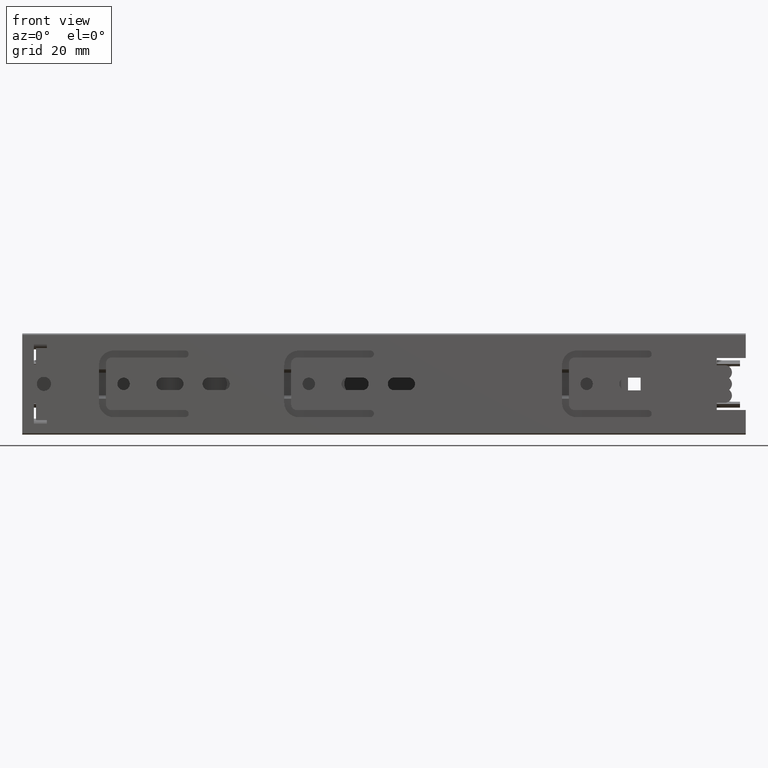
[diagram: clean part render]
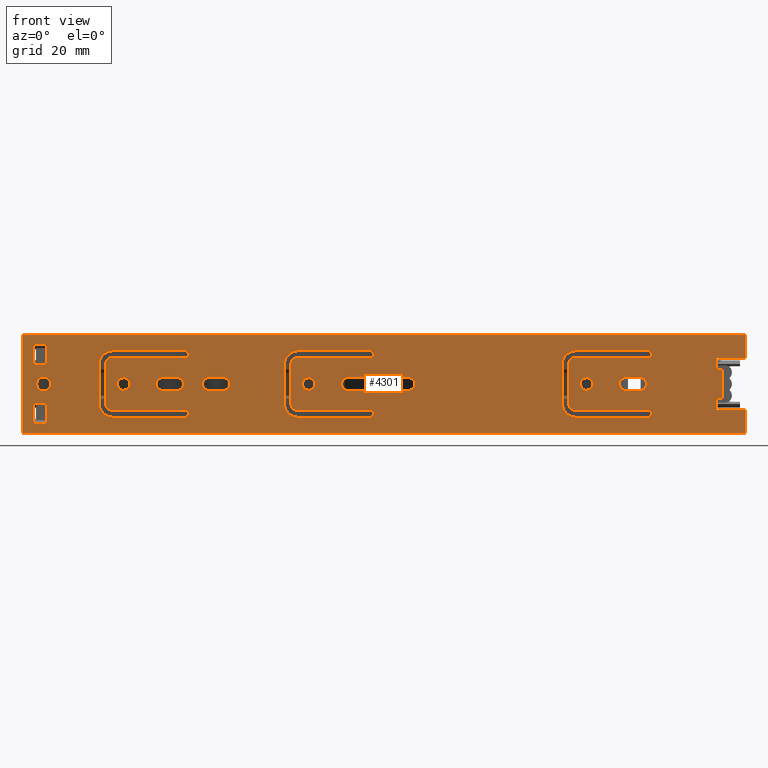
[diagram: same view with one face highlighted and labeled with its STEP entity id]
A machine part, front view. The second image highlights one B-rep face of the part: STEP entity #4301.
In plain terms, the highlighted planar face has unit normal (0, -1, -0).
Its self-contained STEP definition (entity closure, byte-faithful):
#154=FACE_BOUND('',#538,.T.);
#155=FACE_BOUND('',#539,.T.);
#156=FACE_BOUND('',#540,.T.);
#157=FACE_BOUND('',#541,.T.);
#158=FACE_BOUND('',#542,.T.);
#159=FACE_BOUND('',#543,.T.);
#160=FACE_BOUND('',#544,.T.);
#161=FACE_BOUND('',#545,.T.);
#162=FACE_BOUND('',#546,.T.);
#163=FACE_BOUND('',#547,.T.);
#164=FACE_BOUND('',#548,.T.);
#165=FACE_BOUND('',#549,.T.);
#166=FACE_BOUND('',#550,.T.);
#167=FACE_BOUND('',#551,.T.);
#295=FACE_OUTER_BOUND('',#537,.T.);
#537=EDGE_LOOP('',(#3345,#3346,#3347,#3348,#3349,#3350,#3351,#3352,#3353,
#3354,#3355,#3356));
#538=EDGE_LOOP('',(#3357,#3358,#3359,#3360,#3361,#3362,#3363,#3364,#3365,
#3366,#3367,#3368));
#539=EDGE_LOOP('',(#3369,#3370,#3371,#3372,#3373,#3374,#3375,#3376,#3377,
#3378,#3379,#3380));
#540=EDGE_LOOP('',(#3381,#3382,#3383,#3384,#3385,#3386,#3387,#3388,#3389,
#3390,#3391,#3392));
#541=EDGE_LOOP('',(#3393,#3394,#3395,#3396));
#542=EDGE_LOOP('',(#3397,#3398,#3399,#3400));
#543=EDGE_LOOP('',(#3401,#3402,#3403,#3404));
#544=EDGE_LOOP('',(#3405));
#545=EDGE_LOOP('',(#3406));
#546=EDGE_LOOP('',(#3407));
#547=EDGE_LOOP('',(#3408));
#548=EDGE_LOOP('',(#3409,#3410,#3411,#3412));
#549=EDGE_LOOP('',(#3413,#3414,#3415,#3416));
#550=EDGE_LOOP('',(#3417,#3418,#3419,#3420));
#551=EDGE_LOOP('',(#3421,#3422,#3423,#3424));
#704=LINE('',#6137,#1162);
#709=LINE('',#6146,#1167);
#758=LINE('',#6310,#1216);
#760=LINE('',#6314,#1218);
#763=LINE('',#6319,#1221);
#764=LINE('',#6322,#1222);
#767=LINE('',#6327,#1225);
#768=LINE('',#6330,#1226);
#778=LINE('',#6356,#1236);
#781=LINE('',#6364,#1239);
#784=LINE('',#6372,#1242);
#787=LINE('',#6380,#1245);
#790=LINE('',#6388,#1248);
#793=LINE('',#6395,#1251);
#796=LINE('',#6404,#1254);
#799=LINE('',#6412,#1257);
#802=LINE('',#6420,#1260);
#805=LINE('',#6428,#1263);
#808=LINE('',#6436,#1266);
#811=LINE('',#6443,#1269);
#814=LINE('',#6452,#1272);
#817=LINE('',#6460,#1275);
#820=LINE('',#6468,#1278);
#823=LINE('',#6476,#1281);
#826=LINE('',#6484,#1284);
#829=LINE('',#6491,#1287);
#832=LINE('',#6500,#1290);
#835=LINE('',#6507,#1293);
#838=LINE('',#6516,#1296);
#841=LINE('',#6523,#1299);
#843=LINE('',#6528,#1301);
#845=LINE('',#6532,#1303);
#847=LINE('',#6536,#1305);
#849=LINE('',#6539,#1307);
#851=LINE('',#6556,#1309);
#853=LINE('',#6560,#1311);
#855=LINE('',#6564,#1313);
#857=LINE('',#6567,#1315);
#860=LINE('',#6576,#1318);
#863=LINE('',#6583,#1321);
#866=LINE('',#6592,#1324);
#869=LINE('',#6599,#1327);
#872=LINE('',#6608,#1330);
#875=LINE('',#6615,#1333);
#876=LINE('',#6619,#1334);
#899=LINE('',#6672,#1357);
#915=LINE('',#6707,#1373);
#916=LINE('',#6709,#1374);
#1162=VECTOR('',#4884,10.);
#1167=VECTOR('',#4891,1.99999999999999);
#1216=VECTOR('',#5012,1.99999999999999);
#1218=VECTOR('',#5016,3.99999999999996);
#1221=VECTOR('',#5021,4.00000000000004);
#1222=VECTOR('',#5024,10.);
#1225=VECTOR('',#5029,10.);
#1226=VECTOR('',#5032,8.);
#1236=VECTOR('',#5052,25.4);
#1239=VECTOR('',#5061,14.2);
#1242=VECTOR('',#5070,25.4);
#1245=VECTOR('',#5079,24.8);
#1248=VECTOR('',#5088,13.);
#1251=VECTOR('',#5097,24.8);
#1254=VECTOR('',#5106,24.7999999999999);
#1257=VECTOR('',#5115,13.);
#1260=VECTOR('',#5124,24.7999999999999);
#1263=VECTOR('',#5133,25.3999999999999);
#1266=VECTOR('',#5142,14.2);
#1269=VECTOR('',#5151,25.3999999999999);
#1272=VECTOR('',#5160,25.4);
#1275=VECTOR('',#5169,14.2);
#1278=VECTOR('',#5178,25.4);
#1281=VECTOR('',#5187,24.8);
#1284=VECTOR('',#5196,13.);
#1287=VECTOR('',#5205,24.8);
#1290=VECTOR('',#5214,5.);
#1293=VECTOR('',#5223,5.);
#1296=VECTOR('',#5232,5.);
#1299=VECTOR('',#5241,5.);
#1301=VECTOR('',#5245,7.);
#1303=VECTOR('',#5249,4.49999999999999);
#1305=VECTOR('',#5253,7.);
#1307=VECTOR('',#5257,4.49999999999999);
#1309=VECTOR('',#5277,7.);
#1311=VECTOR('',#5281,4.49999999999999);
#1313=VECTOR('',#5285,7.);
#1315=VECTOR('',#5289,4.49999999999999);
#1318=VECTOR('',#5298,5.);
#1321=VECTOR('',#5307,5.);
#1324=VECTOR('',#5316,5.);
#1327=VECTOR('',#5325,5.);
#1330=VECTOR('',#5334,4.99999999999993);
#1333=VECTOR('',#5343,5.);
#1334=VECTOR('',#5346,250.);
#1357=VECTOR('',#5395,34.);
#1373=VECTOR('',#5433,250.);
#1374=VECTOR('',#5436,8.);
#1649=CIRCLE('',#4491,1.2);
#1650=CIRCLE('',#4494,1.99999999999999);
#1651=CIRCLE('',#4497,1.99999999999999);
#1652=CIRCLE('',#4500,1.2);
#1653=CIRCLE('',#4503,5.00000000000002);
#1654=CIRCLE('',#4506,5.00000000000002);
#1655=CIRCLE('',#4509,1.2);
#1656=CIRCLE('',#4512,5.);
#1657=CIRCLE('',#4515,5.);
#1658=CIRCLE('',#4518,1.2);
#1659=CIRCLE('',#4521,2.00000000000001);
#1660=CIRCLE('',#4524,2.);
#1661=CIRCLE('',#4527,1.2);
#1662=CIRCLE('',#4530,1.99999999999998);
#1663=CIRCLE('',#4533,1.99999999999999);
#1664=CIRCLE('',#4536,1.2);
#1665=CIRCLE('',#4539,5.);
#1666=CIRCLE('',#4542,5.);
#1667=CIRCLE('',#4545,2.20000000000006);
#1668=CIRCLE('',#4548,2.20000000000006);
#1669=CIRCLE('',#4551,2.2);
#1670=CIRCLE('',#4554,2.2);
#1671=CIRCLE('',#4561,2.45);
#1672=CIRCLE('',#4563,2.15);
#1673=CIRCLE('',#4565,2.15);
#1674=CIRCLE('',#4567,2.15);
#1675=CIRCLE('',#4573,2.2);
#1676=CIRCLE('',#4576,2.2);
#1677=CIRCLE('',#4579,2.20000000000006);
#1678=CIRCLE('',#4582,2.20000000000006);
#1679=CIRCLE('',#4585,2.2);
#1680=CIRCLE('',#4588,2.2);
#1787=VERTEX_POINT('',#6134);
#1788=VERTEX_POINT('',#6136);
#1791=VERTEX_POINT('',#6144);
#1870=VERTEX_POINT('',#6309);
#1871=VERTEX_POINT('',#6313);
#1872=VERTEX_POINT('',#6317);
#1873=VERTEX_POINT('',#6321);
#1874=VERTEX_POINT('',#6325);
#1875=VERTEX_POINT('',#6329);
#1884=VERTEX_POINT('',#6349);
#1885=VERTEX_POINT('',#6351);
#1886=VERTEX_POINT('',#6355);
#1887=VERTEX_POINT('',#6359);
#1888=VERTEX_POINT('',#6363);
#1889=VERTEX_POINT('',#6367);
#1890=VERTEX_POINT('',#6371);
#1891=VERTEX_POINT('',#6375);
#1892=VERTEX_POINT('',#6379);
#1893=VERTEX_POINT('',#6383);
#1894=VERTEX_POINT('',#6387);
#1895=VERTEX_POINT('',#6391);
#1896=VERTEX_POINT('',#6397);
#1897=VERTEX_POINT('',#6399);
#1898=VERTEX_POINT('',#6403);
#1899=VERTEX_POINT('',#6407);
#1900=VERTEX_POINT('',#6411);
#1901=VERTEX_POINT('',#6415);
#1902=VERTEX_POINT('',#6419);
#1903=VERTEX_POINT('',#6423);
#1904=VERTEX_POINT('',#6427);
#1905=VERTEX_POINT('',#6431);
#1906=VERTEX_POINT('',#6435);
#1907=VERTEX_POINT('',#6439);
#1908=VERTEX_POINT('',#6445);
#1909=VERTEX_POINT('',#6447);
#1910=VERTEX_POINT('',#6451);
#1911=VERTEX_POINT('',#6455);
#1912=VERTEX_POINT('',#6459);
#1913=VERTEX_POINT('',#6463);
#1914=VERTEX_POINT('',#6467);
#1915=VERTEX_POINT('',#6471);
#1916=VERTEX_POINT('',#6475);
#1917=VERTEX_POINT('',#6479);
#1918=VERTEX_POINT('',#6483);
#1919=VERTEX_POINT('',#6487);
#1920=VERTEX_POINT('',#6493);
#1921=VERTEX_POINT('',#6495);
#1922=VERTEX_POINT('',#6499);
#1923=VERTEX_POINT('',#6503);
#1924=VERTEX_POINT('',#6509);
#1925=VERTEX_POINT('',#6511);
#1926=VERTEX_POINT('',#6515);
#1927=VERTEX_POINT('',#6519);
#1928=VERTEX_POINT('',#6525);
#1929=VERTEX_POINT('',#6527);
#1930=VERTEX_POINT('',#6531);
#1931=VERTEX_POINT('',#6535);
#1932=VERTEX_POINT('',#6541);
#1933=VERTEX_POINT('',#6544);
#1934=VERTEX_POINT('',#6547);
#1935=VERTEX_POINT('',#6550);
#1936=VERTEX_POINT('',#6553);
#1937=VERTEX_POINT('',#6555);
#1938=VERTEX_POINT('',#6559);
#1939=VERTEX_POINT('',#6563);
#1940=VERTEX_POINT('',#6569);
#1941=VERTEX_POINT('',#6571);
#1942=VERTEX_POINT('',#6575);
#1943=VERTEX_POINT('',#6579);
#1944=VERTEX_POINT('',#6585);
#1945=VERTEX_POINT('',#6587);
#1946=VERTEX_POINT('',#6591);
#1947=VERTEX_POINT('',#6595);
#1948=VERTEX_POINT('',#6601);
#1949=VERTEX_POINT('',#6603);
#1950=VERTEX_POINT('',#6607);
#1951=VERTEX_POINT('',#6611);
#1952=VERTEX_POINT('',#6617);
#1953=VERTEX_POINT('',#6618);
#1970=VERTEX_POINT('',#6671);
#2216=EDGE_CURVE('',#1787,#1788,#704,.T.);
#2221=EDGE_CURVE('',#1791,#1787,#709,.T.);
#2302=EDGE_CURVE('',#1788,#1870,#758,.T.);
#2304=EDGE_CURVE('',#1871,#1870,#760,.T.);
#2307=EDGE_CURVE('',#1791,#1872,#763,.T.);
#2308=EDGE_CURVE('',#1873,#1871,#764,.T.);
#2311=EDGE_CURVE('',#1872,#1874,#767,.T.);
#2312=EDGE_CURVE('',#1873,#1875,#768,.T.);
#2323=EDGE_CURVE('',#1885,#1884,#1649,.T.);
#2325=EDGE_CURVE('',#1886,#1885,#778,.T.);
#2327=EDGE_CURVE('',#1887,#1886,#1650,.T.);
#2329=EDGE_CURVE('',#1888,#1887,#781,.T.);
#2331=EDGE_CURVE('',#1889,#1888,#1651,.T.);
#2333=EDGE_CURVE('',#1890,#1889,#784,.T.);
#2335=EDGE_CURVE('',#1891,#1890,#1652,.T.);
#2337=EDGE_CURVE('',#1892,#1891,#787,.T.);
#2339=EDGE_CURVE('',#1893,#1892,#1653,.T.);
#2341=EDGE_CURVE('',#1894,#1893,#790,.T.);
#2343=EDGE_CURVE('',#1895,#1894,#1654,.T.);
#2345=EDGE_CURVE('',#1884,#1895,#793,.T.);
#2347=EDGE_CURVE('',#1897,#1896,#1655,.T.);
#2349=EDGE_CURVE('',#1898,#1897,#796,.T.);
#2351=EDGE_CURVE('',#1899,#1898,#1656,.T.);
#2353=EDGE_CURVE('',#1900,#1899,#799,.T.);
#2355=EDGE_CURVE('',#1901,#1900,#1657,.T.);
#2357=EDGE_CURVE('',#1902,#1901,#802,.T.);
#2359=EDGE_CURVE('',#1903,#1902,#1658,.T.);
#2361=EDGE_CURVE('',#1904,#1903,#805,.T.);
#2363=EDGE_CURVE('',#1905,#1904,#1659,.T.);
#2365=EDGE_CURVE('',#1906,#1905,#808,.T.);
#2367=EDGE_CURVE('',#1907,#1906,#1660,.T.);
#2369=EDGE_CURVE('',#1896,#1907,#811,.T.);
#2371=EDGE_CURVE('',#1909,#1908,#1661,.T.);
#2373=EDGE_CURVE('',#1910,#1909,#814,.T.);
#2375=EDGE_CURVE('',#1911,#1910,#1662,.T.);
#2377=EDGE_CURVE('',#1912,#1911,#817,.T.);
#2379=EDGE_CURVE('',#1913,#1912,#1663,.T.);
#2381=EDGE_CURVE('',#1914,#1913,#820,.T.);
#2383=EDGE_CURVE('',#1915,#1914,#1664,.T.);
#2385=EDGE_CURVE('',#1916,#1915,#823,.T.);
#2387=EDGE_CURVE('',#1917,#1916,#1665,.T.);
#2389=EDGE_CURVE('',#1918,#1917,#826,.T.);
#2391=EDGE_CURVE('',#1919,#1918,#1666,.T.);
#2393=EDGE_CURVE('',#1908,#1919,#829,.T.);
#2395=EDGE_CURVE('',#1921,#1920,#1667,.T.);
#2397=EDGE_CURVE('',#1922,#1921,#832,.T.);
#2399=EDGE_CURVE('',#1923,#1922,#1668,.T.);
#2401=EDGE_CURVE('',#1920,#1923,#835,.T.);
#2403=EDGE_CURVE('',#1925,#1924,#1669,.T.);
#2405=EDGE_CURVE('',#1926,#1925,#838,.T.);
#2407=EDGE_CURVE('',#1927,#1926,#1670,.T.);
#2409=EDGE_CURVE('',#1924,#1927,#841,.T.);
#2411=EDGE_CURVE('',#1929,#1928,#843,.T.);
#2413=EDGE_CURVE('',#1930,#1929,#845,.T.);
#2415=EDGE_CURVE('',#1931,#1930,#847,.T.);
#2417=EDGE_CURVE('',#1928,#1931,#849,.T.);
#2418=EDGE_CURVE('',#1932,#1932,#1671,.T.);
#2419=EDGE_CURVE('',#1933,#1933,#1672,.T.);
#2420=EDGE_CURVE('',#1934,#1934,#1673,.T.);
#2421=EDGE_CURVE('',#1935,#1935,#1674,.T.);
#2423=EDGE_CURVE('',#1937,#1936,#851,.T.);
#2425=EDGE_CURVE('',#1938,#1937,#853,.T.);
#2427=EDGE_CURVE('',#1939,#1938,#855,.T.);
#2429=EDGE_CURVE('',#1936,#1939,#857,.T.);
#2431=EDGE_CURVE('',#1941,#1940,#1675,.T.);
#2433=EDGE_CURVE('',#1942,#1941,#860,.T.);
#2435=EDGE_CURVE('',#1943,#1942,#1676,.T.);
#2437=EDGE_CURVE('',#1940,#1943,#863,.T.);
#2439=EDGE_CURVE('',#1945,#1944,#1677,.T.);
#2441=EDGE_CURVE('',#1946,#1945,#866,.T.);
#2443=EDGE_CURVE('',#1947,#1946,#1678,.T.);
#2445=EDGE_CURVE('',#1944,#1947,#869,.T.);
#2447=EDGE_CURVE('',#1949,#1948,#1679,.T.);
#2449=EDGE_CURVE('',#1950,#1949,#872,.T.);
#2451=EDGE_CURVE('',#1951,#1950,#1680,.T.);
#2453=EDGE_CURVE('',#1948,#1951,#875,.T.);
#2454=EDGE_CURVE('',#1952,#1953,#876,.T.);
#2481=EDGE_CURVE('',#1970,#1952,#899,.T.);
#2499=EDGE_CURVE('',#1970,#1875,#915,.T.);
#2500=EDGE_CURVE('',#1953,#1874,#916,.T.);
#3345=ORIENTED_EDGE('',*,*,#2221,.F.);
#3346=ORIENTED_EDGE('',*,*,#2307,.T.);
#3347=ORIENTED_EDGE('',*,*,#2311,.T.);
#3348=ORIENTED_EDGE('',*,*,#2500,.F.);
#3349=ORIENTED_EDGE('',*,*,#2454,.F.);
#3350=ORIENTED_EDGE('',*,*,#2481,.F.);
#3351=ORIENTED_EDGE('',*,*,#2499,.T.);
#3352=ORIENTED_EDGE('',*,*,#2312,.F.);
#3353=ORIENTED_EDGE('',*,*,#2308,.T.);
#3354=ORIENTED_EDGE('',*,*,#2304,.T.);
#3355=ORIENTED_EDGE('',*,*,#2302,.F.);
#3356=ORIENTED_EDGE('',*,*,#2216,.F.);
#3357=ORIENTED_EDGE('',*,*,#2335,.T.);
#3358=ORIENTED_EDGE('',*,*,#2333,.T.);
#3359=ORIENTED_EDGE('',*,*,#2331,.T.);
#3360=ORIENTED_EDGE('',*,*,#2329,.T.);
#3361=ORIENTED_EDGE('',*,*,#2327,.T.);
#3362=ORIENTED_EDGE('',*,*,#2325,.T.);
#3363=ORIENTED_EDGE('',*,*,#2323,.T.);
#3364=ORIENTED_EDGE('',*,*,#2345,.T.);
#3365=ORIENTED_EDGE('',*,*,#2343,.T.);
#3366=ORIENTED_EDGE('',*,*,#2341,.T.);
#3367=ORIENTED_EDGE('',*,*,#2339,.T.);
#3368=ORIENTED_EDGE('',*,*,#2337,.T.);
#3369=ORIENTED_EDGE('',*,*,#2359,.T.);
#3370=ORIENTED_EDGE('',*,*,#2357,.T.);
#3371=ORIENTED_EDGE('',*,*,#2355,.T.);
#3372=ORIENTED_EDGE('',*,*,#2353,.T.);
#3373=ORIENTED_EDGE('',*,*,#2351,.T.);
#3374=ORIENTED_EDGE('',*,*,#2349,.T.);
#3375=ORIENTED_EDGE('',*,*,#2347,.T.);
#3376=ORIENTED_EDGE('',*,*,#2369,.T.);
#3377=ORIENTED_EDGE('',*,*,#2367,.T.);
#3378=ORIENTED_EDGE('',*,*,#2365,.T.);
#3379=ORIENTED_EDGE('',*,*,#2363,.T.);
#3380=ORIENTED_EDGE('',*,*,#2361,.T.);
#3381=ORIENTED_EDGE('',*,*,#2383,.T.);
#3382=ORIENTED_EDGE('',*,*,#2381,.T.);
#3383=ORIENTED_EDGE('',*,*,#2379,.T.);
#3384=ORIENTED_EDGE('',*,*,#2377,.T.);
#3385=ORIENTED_EDGE('',*,*,#2375,.T.);
#3386=ORIENTED_EDGE('',*,*,#2373,.T.);
#3387=ORIENTED_EDGE('',*,*,#2371,.T.);
#3388=ORIENTED_EDGE('',*,*,#2393,.T.);
#3389=ORIENTED_EDGE('',*,*,#2391,.T.);
#3390=ORIENTED_EDGE('',*,*,#2389,.T.);
#3391=ORIENTED_EDGE('',*,*,#2387,.T.);
#3392=ORIENTED_EDGE('',*,*,#2385,.T.);
#3393=ORIENTED_EDGE('',*,*,#2399,.T.);
#3394=ORIENTED_EDGE('',*,*,#2397,.T.);
#3395=ORIENTED_EDGE('',*,*,#2395,.T.);
#3396=ORIENTED_EDGE('',*,*,#2401,.T.);
#3397=ORIENTED_EDGE('',*,*,#2407,.T.);
#3398=ORIENTED_EDGE('',*,*,#2405,.T.);
#3399=ORIENTED_EDGE('',*,*,#2403,.T.);
#3400=ORIENTED_EDGE('',*,*,#2409,.T.);
#3401=ORIENTED_EDGE('',*,*,#2415,.T.);
#3402=ORIENTED_EDGE('',*,*,#2413,.T.);
#3403=ORIENTED_EDGE('',*,*,#2411,.T.);
#3404=ORIENTED_EDGE('',*,*,#2417,.T.);
#3405=ORIENTED_EDGE('',*,*,#2418,.T.);
#3406=ORIENTED_EDGE('',*,*,#2419,.T.);
#3407=ORIENTED_EDGE('',*,*,#2420,.T.);
#3408=ORIENTED_EDGE('',*,*,#2421,.T.);
#3409=ORIENTED_EDGE('',*,*,#2427,.T.);
#3410=ORIENTED_EDGE('',*,*,#2425,.T.);
#3411=ORIENTED_EDGE('',*,*,#2423,.T.);
#3412=ORIENTED_EDGE('',*,*,#2429,.T.);
#3413=ORIENTED_EDGE('',*,*,#2435,.T.);
#3414=ORIENTED_EDGE('',*,*,#2433,.T.);
#3415=ORIENTED_EDGE('',*,*,#2431,.T.);
#3416=ORIENTED_EDGE('',*,*,#2437,.T.);
#3417=ORIENTED_EDGE('',*,*,#2443,.T.);
#3418=ORIENTED_EDGE('',*,*,#2441,.T.);
#3419=ORIENTED_EDGE('',*,*,#2439,.T.);
#3420=ORIENTED_EDGE('',*,*,#2445,.T.);
#3421=ORIENTED_EDGE('',*,*,#2451,.T.);
#3422=ORIENTED_EDGE('',*,*,#2449,.T.);
#3423=ORIENTED_EDGE('',*,*,#2447,.T.);
#3424=ORIENTED_EDGE('',*,*,#2453,.T.);
#4118=PLANE('',#4615);
#4301=ADVANCED_FACE('',(#295,#154,#155,#156,#157,#158,#159,#160,#161,#162,
#163,#164,#165,#166,#167),#4118,.T.);
#4491=AXIS2_PLACEMENT_3D('',#6352,#5047,#5048);
#4494=AXIS2_PLACEMENT_3D('',#6360,#5056,#5057);
#4497=AXIS2_PLACEMENT_3D('',#6368,#5065,#5066);
#4500=AXIS2_PLACEMENT_3D('',#6376,#5074,#5075);
#4503=AXIS2_PLACEMENT_3D('',#6384,#5083,#5084);
#4506=AXIS2_PLACEMENT_3D('',#6392,#5092,#5093);
#4509=AXIS2_PLACEMENT_3D('',#6400,#5101,#5102);
#4512=AXIS2_PLACEMENT_3D('',#6408,#5110,#5111);
#4515=AXIS2_PLACEMENT_3D('',#6416,#5119,#5120);
#4518=AXIS2_PLACEMENT_3D('',#6424,#5128,#5129);
#4521=AXIS2_PLACEMENT_3D('',#6432,#5137,#5138);
#4524=AXIS2_PLACEMENT_3D('',#6440,#5146,#5147);
#4527=AXIS2_PLACEMENT_3D('',#6448,#5155,#5156);
#4530=AXIS2_PLACEMENT_3D('',#6456,#5164,#5165);
#4533=AXIS2_PLACEMENT_3D('',#6464,#5173,#5174);
#4536=AXIS2_PLACEMENT_3D('',#6472,#5182,#5183);
#4539=AXIS2_PLACEMENT_3D('',#6480,#5191,#5192);
#4542=AXIS2_PLACEMENT_3D('',#6488,#5200,#5201);
#4545=AXIS2_PLACEMENT_3D('',#6496,#5209,#5210);
#4548=AXIS2_PLACEMENT_3D('',#6504,#5218,#5219);
#4551=AXIS2_PLACEMENT_3D('',#6512,#5227,#5228);
#4554=AXIS2_PLACEMENT_3D('',#6520,#5236,#5237);
#4561=AXIS2_PLACEMENT_3D('',#6542,#5260,#5261);
#4563=AXIS2_PLACEMENT_3D('',#6545,#5264,#5265);
#4565=AXIS2_PLACEMENT_3D('',#6548,#5268,#5269);
#4567=AXIS2_PLACEMENT_3D('',#6551,#5272,#5273);
#4573=AXIS2_PLACEMENT_3D('',#6572,#5293,#5294);
#4576=AXIS2_PLACEMENT_3D('',#6580,#5302,#5303);
#4579=AXIS2_PLACEMENT_3D('',#6588,#5311,#5312);
#4582=AXIS2_PLACEMENT_3D('',#6596,#5320,#5321);
#4585=AXIS2_PLACEMENT_3D('',#6604,#5329,#5330);
#4588=AXIS2_PLACEMENT_3D('',#6612,#5338,#5339);
#4615=AXIS2_PLACEMENT_3D('',#6708,#5434,#5435);
#4884=DIRECTION('',(0.,3.06161699786838E-16,-1.));
#4891=DIRECTION('',(1.,-6.79815536723448E-31,2.22044604925032E-15));
#5012=DIRECTION('',(-1.,0.,0.));
#5016=DIRECTION('',(0.,-3.06161699786838E-16,1.));
#5021=DIRECTION('',(0.,-3.06161699786838E-16,1.));
#5024=DIRECTION('',(-1.,4.71385096176607E-32,-1.53966056663784E-16));
#5029=DIRECTION('',(1.,0.,0.));
#5032=DIRECTION('',(0.,-3.06161699786838E-16,-1.));
#5047=DIRECTION('center_axis',(0.,1.,3.06161699786838E-16));
#5048=DIRECTION('ref_axis',(0.,-3.70074341541719E-16,1.));
#5052=DIRECTION('',(1.,9.36753692335457E-32,-3.05966975290398E-16));
#5056=DIRECTION('center_axis',(0.,-1.,-3.06161699786838E-16));
#5057=DIRECTION('ref_axis',(-1.,-2.05432527401306E-31,5.5511151231258E-16));
#5061=DIRECTION('',(0.,3.06161699786838E-16,-1.));
#5065=DIRECTION('center_axis',(0.,-1.,-3.06161699786838E-16));
#5066=DIRECTION('ref_axis',(0.,-3.70074341541719E-16,1.));
#5070=DIRECTION('',(-1.,-1.07057564838338E-31,3.49676543189026E-16));
#5074=DIRECTION('center_axis',(0.,1.,3.06161699786838E-16));
#5075=DIRECTION('ref_axis',(0.,-3.70074341541719E-16,1.));
#5079=DIRECTION('',(1.,-5.48238336067295E-32,1.79068229778251E-16));
#5083=DIRECTION('center_axis',(0.,1.,3.06161699786838E-16));
#5084=DIRECTION('ref_axis',(0.,3.70074341541719E-16,-1.));
#5088=DIRECTION('',(0.,-3.06161699786838E-16,1.));
#5092=DIRECTION('center_axis',(0.,1.,3.06161699786838E-16));
#5093=DIRECTION('ref_axis',(1.,0.,0.));
#5097=DIRECTION('',(-1.,-2.74119168033647E-32,8.95341148891255E-17));
#5101=DIRECTION('center_axis',(0.,1.,3.06161699786838E-16));
#5102=DIRECTION('ref_axis',(0.,0.,1.));
#5106=DIRECTION('',(1.,5.48238336067296E-32,-1.79068229778252E-16));
#5110=DIRECTION('center_axis',(0.,1.,3.06161699786838E-16));
#5111=DIRECTION('ref_axis',(0.,0.,-1.));
#5115=DIRECTION('',(0.,-3.06161699786838E-16,1.));
#5119=DIRECTION('center_axis',(0.,1.,3.06161699786838E-16));
#5120=DIRECTION('ref_axis',(1.,0.,-4.44089209850063E-16));
#5124=DIRECTION('',(-1.,5.48238336067296E-32,-1.79068229778252E-16));
#5128=DIRECTION('center_axis',(0.,1.,3.06161699786838E-16));
#5129=DIRECTION('ref_axis',(0.,0.,1.));
#5133=DIRECTION('',(1.,0.,0.));
#5137=DIRECTION('center_axis',(0.,-1.,-3.06161699786838E-16));
#5138=DIRECTION('ref_axis',(-1.,0.,0.));
#5142=DIRECTION('',(-6.25477760352201E-16,3.06161699786838E-16,-1.));
#5146=DIRECTION('center_axis',(0.,-1.,-3.06161699786838E-16));
#5147=DIRECTION('ref_axis',(0.,0.,1.));
#5151=DIRECTION('',(-1.,0.,0.));
#5155=DIRECTION('center_axis',(0.,1.,3.06161699786838E-16));
#5156=DIRECTION('ref_axis',(0.,-3.70074341541719E-16,1.));
#5160=DIRECTION('',(1.,9.36753692335455E-32,-3.05966975290397E-16));
#5164=DIRECTION('center_axis',(0.,-1.,-3.06161699786838E-16));
#5165=DIRECTION('ref_axis',(-1.,-2.05432527401306E-31,5.5511151231258E-16));
#5169=DIRECTION('',(2.5019110414088E-15,3.06161699786838E-16,-1.));
#5173=DIRECTION('center_axis',(0.,-1.,-3.06161699786838E-16));
#5174=DIRECTION('ref_axis',(0.,-3.70074341541719E-16,1.));
#5178=DIRECTION('',(-1.,-1.60586347257507E-31,5.24514814783538E-16));
#5182=DIRECTION('center_axis',(0.,1.,3.06161699786838E-16));
#5183=DIRECTION('ref_axis',(0.,-3.70074341541719E-16,1.));
#5187=DIRECTION('',(1.,-1.64471500820188E-31,5.37204689334753E-16));
#5191=DIRECTION('center_axis',(0.,1.,3.06161699786838E-16));
#5192=DIRECTION('ref_axis',(0.,3.70074341541719E-16,-1.));
#5196=DIRECTION('',(0.,-3.06161699786838E-16,1.));
#5200=DIRECTION('center_axis',(0.,1.,3.06161699786838E-16));
#5201=DIRECTION('ref_axis',(1.,0.,0.));
#5205=DIRECTION('',(-1.,-1.64471500820188E-31,5.37204689334753E-16));
#5209=DIRECTION('center_axis',(0.,1.,3.06161699786838E-16));
#5210=DIRECTION('ref_axis',(0.,-2.77555756156289E-16,1.));
#5214=DIRECTION('',(1.,2.71926214689378E-31,-8.88178419700125E-16));
#5218=DIRECTION('center_axis',(0.,1.,3.06161699786838E-16));
#5219=DIRECTION('ref_axis',(0.,2.77555756156289E-16,-1.));
#5223=DIRECTION('',(-1.,-1.35963107344689E-31,4.44089209850063E-16));
#5227=DIRECTION('center_axis',(0.,1.,3.06161699786838E-16));
#5228=DIRECTION('ref_axis',(0.,-2.77555756156289E-16,1.));
#5232=DIRECTION('',(1.,-2.71926214689378E-31,8.88178419700125E-16));
#5236=DIRECTION('center_axis',(0.,1.,3.06161699786838E-16));
#5237=DIRECTION('ref_axis',(0.,2.77555756156289E-16,-1.));
#5241=DIRECTION('',(-1.,1.35963107344689E-31,-4.44089209850063E-16));
#5245=DIRECTION('',(0.,3.06161699786838E-16,-1.));
#5249=DIRECTION('',(1.,0.,0.));
#5253=DIRECTION('',(-1.58603289232165E-16,-3.06161699786838E-16,1.));
#5257=DIRECTION('',(-1.,0.,0.));
#5260=DIRECTION('center_axis',(0.,1.,3.06161699786838E-16));
#5261=DIRECTION('ref_axis',(-1.,0.,0.));
#5264=DIRECTION('center_axis',(0.,1.,3.06161699786838E-16));
#5265=DIRECTION('ref_axis',(-1.,0.,0.));
#5268=DIRECTION('center_axis',(0.,1.,3.06161699786838E-16));
#5269=DIRECTION('ref_axis',(-1.,0.,0.));
#5272=DIRECTION('center_axis',(0.,1.,3.06161699786838E-16));
#5273=DIRECTION('ref_axis',(-1.,0.,0.));
#5277=DIRECTION('',(3.1720657846433E-16,3.06161699786838E-16,-1.));
#5281=DIRECTION('',(1.,0.,0.));
#5285=DIRECTION('',(-4.75809867696496E-16,-3.06161699786838E-16,1.));
#5289=DIRECTION('',(-1.,0.,0.));
#5293=DIRECTION('center_axis',(0.,1.,3.06161699786838E-16));
#5294=DIRECTION('ref_axis',(0.,-2.77555756156289E-16,1.));
#5298=DIRECTION('',(1.,-1.35963107344689E-31,4.44089209850063E-16));
#5302=DIRECTION('center_axis',(0.,1.,3.06161699786838E-16));
#5303=DIRECTION('ref_axis',(0.,2.77555756156289E-16,-1.));
#5307=DIRECTION('',(-1.,-1.35963107344689E-31,4.44089209850063E-16));
#5311=DIRECTION('center_axis',(0.,1.,3.06161699786838E-16));
#5312=DIRECTION('ref_axis',(0.,-2.77555756156289E-16,1.));
#5316=DIRECTION('',(1.,1.35963107344689E-31,-4.44089209850063E-16));
#5320=DIRECTION('center_axis',(0.,1.,3.06161699786838E-16));
#5321=DIRECTION('ref_axis',(0.,2.77555756156289E-16,-1.));
#5325=DIRECTION('',(-1.,0.,0.));
#5329=DIRECTION('center_axis',(0.,1.,3.06161699786838E-16));
#5330=DIRECTION('ref_axis',(0.,-2.77555756156289E-16,1.));
#5334=DIRECTION('',(1.,1.35963107344691E-31,-4.44089209850069E-16));
#5338=DIRECTION('center_axis',(0.,1.,3.06161699786838E-16));
#5339=DIRECTION('ref_axis',(-3.22973970800045E-14,2.77555756156289E-16,
-1.));
#5343=DIRECTION('',(-1.,-1.35963107344689E-31,4.44089209850063E-16));
#5346=DIRECTION('',(1.,0.,0.));
#5395=DIRECTION('',(0.,-3.06161699786838E-16,1.));
#5433=DIRECTION('',(1.,0.,0.));
#5434=DIRECTION('center_axis',(0.,-1.,-3.06161699786838E-16));
#5435=DIRECTION('ref_axis',(0.,3.06161699786838E-16,-1.));
#5436=DIRECTION('',(0.,-3.06161699786838E-16,-1.));
#6134=CARTESIAN_POINT('',(117.,-1.53080849893418E-15,4.99999999999996));
#6136=CARTESIAN_POINT('',(117.,1.5308084989342E-15,-5.00000000000004));
#6137=CARTESIAN_POINT('',(117.,-1.53080849893418E-15,4.99999999999996));
#6144=CARTESIAN_POINT('',(115.,-1.53080849893418E-15,4.99999999999996));
#6146=CARTESIAN_POINT('',(115.,-1.53080849893418E-15,4.99999999999996));
#6309=CARTESIAN_POINT('',(115.,1.5308084989342E-15,-5.00000000000004));
#6310=CARTESIAN_POINT('',(117.,1.5308084989342E-15,-5.00000000000004));
#6313=CARTESIAN_POINT('',(115.,2.75545529808154E-15,-9.));
#6314=CARTESIAN_POINT('',(115.,1.37772764904077E-15,-4.5));
#6317=CARTESIAN_POINT('',(115.,-2.75545529808154E-15,9.));
#6319=CARTESIAN_POINT('',(115.,1.37772764904077E-15,-4.5));
#6321=CARTESIAN_POINT('',(125.,-2.75545529808154E-15,-9.));
#6322=CARTESIAN_POINT('',(64.7108297678205,2.75545529808155E-15,-9.00000000000001));
#6325=CARTESIAN_POINT('',(125.,2.75545529808154E-15,9.));
#6327=CARTESIAN_POINT('',(57.5,-2.75545529808154E-15,9.));
#6329=CARTESIAN_POINT('',(125.,5.20474889637625E-15,-17.));
#6330=CARTESIAN_POINT('',(125.,5.20474889637625E-15,17.));
#6349=CARTESIAN_POINT('',(-4.69999999999999,3.52085954754864E-15,-11.5));
#6351=CARTESIAN_POINT('',(-4.69999999999999,2.78607146806023E-15,-9.1));
#6352=CARTESIAN_POINT('Origin',(-4.69999999999999,3.81176571787971E-15,
-10.3));
#6355=CARTESIAN_POINT('',(-30.1,2.78607146806023E-15,-9.1));
#6356=CARTESIAN_POINT('',(-15.05,2.78607146806023E-15,-9.1));
#6359=CARTESIAN_POINT('',(-32.1,2.17374806848655E-15,-7.09999999999999));
#6360=CARTESIAN_POINT('Origin',(-30.1,2.6275278249462E-15,-7.1));
#6363=CARTESIAN_POINT('',(-32.1,-2.17374806848655E-15,7.1));
#6364=CARTESIAN_POINT('',(-32.1,-1.08687403424328E-15,3.55));
#6367=CARTESIAN_POINT('',(-30.1,-2.78607146806023E-15,9.10000000000001));
#6368=CARTESIAN_POINT('Origin',(-30.1,-2.62752782494621E-15,7.1));
#6371=CARTESIAN_POINT('',(-4.69999999999999,-2.78607146806023E-15,9.1));
#6372=CARTESIAN_POINT('',(-2.34999999999999,-2.78607146806023E-15,9.1));
#6375=CARTESIAN_POINT('',(-4.69999999999999,-3.52085954754864E-15,11.5));
#6376=CARTESIAN_POINT('Origin',(-4.69999999999999,-3.8117657178797E-15,
10.3));
#6379=CARTESIAN_POINT('',(-29.5,-3.52085954754864E-15,11.5));
#6380=CARTESIAN_POINT('',(-14.75,-3.52085954754864E-15,11.5));
#6383=CARTESIAN_POINT('',(-34.5,-1.99005104861445E-15,6.49999999999999));
#6384=CARTESIAN_POINT('Origin',(-29.5,-2.40548322002117E-15,6.49999999999999));
#6387=CARTESIAN_POINT('',(-34.5,1.99005104861445E-15,-6.5));
#6388=CARTESIAN_POINT('',(-34.5,9.95025524307224E-16,-3.25));
#6391=CARTESIAN_POINT('',(-29.5,3.52085954754864E-15,-11.5));
#6392=CARTESIAN_POINT('Origin',(-29.5,2.40548322002117E-15,-6.5));
#6395=CARTESIAN_POINT('',(-2.34999999999999,3.52085954754864E-15,-11.5));
#6397=CARTESIAN_POINT('',(-68.7000000000001,-2.78607146806023E-15,9.10000000000001));
#6399=CARTESIAN_POINT('',(-68.7000000000001,-3.52085954754864E-15,11.5));
#6400=CARTESIAN_POINT('Origin',(-68.7000000000001,0.,10.3));
#6403=CARTESIAN_POINT('',(-93.5,-3.52085954754864E-15,11.5));
#6404=CARTESIAN_POINT('',(-46.75,-3.52085954754864E-15,11.5));
#6407=CARTESIAN_POINT('',(-98.5,-1.99005104861445E-15,6.49999999999999));
#6408=CARTESIAN_POINT('Origin',(-93.5,0.,6.49999999999999));
#6411=CARTESIAN_POINT('',(-98.5,1.99005104861445E-15,-6.49999999999999));
#6412=CARTESIAN_POINT('',(-98.5,9.95025524307223E-16,-3.25));
#6415=CARTESIAN_POINT('',(-93.5,3.52085954754864E-15,-11.5));
#6416=CARTESIAN_POINT('Origin',(-93.5,0.,-6.5));
#6419=CARTESIAN_POINT('',(-68.7000000000001,3.52085954754864E-15,-11.5));
#6420=CARTESIAN_POINT('',(-34.35,3.52085954754863E-15,-11.5));
#6423=CARTESIAN_POINT('',(-68.7000000000001,2.78607146806023E-15,-9.09999999999999));
#6424=CARTESIAN_POINT('Origin',(-68.7000000000001,0.,-10.3));
#6427=CARTESIAN_POINT('',(-94.1,2.78607146806023E-15,-9.09999999999999));
#6428=CARTESIAN_POINT('',(-47.05,2.78607146806023E-15,-9.09999999999999));
#6431=CARTESIAN_POINT('',(-96.1,2.17374806848655E-15,-7.09999999999999));
#6432=CARTESIAN_POINT('Origin',(-94.1,0.,-7.09999999999999));
#6435=CARTESIAN_POINT('',(-96.1,-2.17374806848655E-15,7.10000000000001));
#6436=CARTESIAN_POINT('',(-96.1,-1.08687403424329E-15,3.55000000000004));
#6439=CARTESIAN_POINT('',(-94.1,-2.78607146806023E-15,9.10000000000001));
#6440=CARTESIAN_POINT('Origin',(-94.1,0.,7.10000000000001));
#6443=CARTESIAN_POINT('',(-34.35,-2.78607146806023E-15,9.10000000000001));
#6445=CARTESIAN_POINT('',(91.3,3.52085954754864E-15,-11.5));
#6447=CARTESIAN_POINT('',(91.3,2.78607146806023E-15,-9.1));
#6448=CARTESIAN_POINT('Origin',(91.3,3.81176571787971E-15,-10.3));
#6451=CARTESIAN_POINT('',(65.9,2.78607146806023E-15,-9.09999999999999));
#6452=CARTESIAN_POINT('',(32.95,2.78607146806022E-15,-9.09999999999999));
#6455=CARTESIAN_POINT('',(63.9,2.17374806848655E-15,-7.09999999999999));
#6456=CARTESIAN_POINT('Origin',(65.9,2.6275278249462E-15,-7.09999999999999));
#6459=CARTESIAN_POINT('',(63.9,-2.17374806848655E-15,7.10000000000001));
#6460=CARTESIAN_POINT('',(63.9,-1.0868740342433E-15,3.55000000000008));
#6463=CARTESIAN_POINT('',(65.9,-2.78607146806023E-15,9.10000000000001));
#6464=CARTESIAN_POINT('Origin',(65.9,-2.62752782494621E-15,7.10000000000001));
#6467=CARTESIAN_POINT('',(91.3,-2.78607146806023E-15,9.1));
#6468=CARTESIAN_POINT('',(45.65,-2.78607146806023E-15,9.10000000000002));
#6471=CARTESIAN_POINT('',(91.3,-3.52085954754864E-15,11.5));
#6472=CARTESIAN_POINT('Origin',(91.3,-3.8117657178797E-15,10.3));
#6475=CARTESIAN_POINT('',(66.5,-3.52085954754864E-15,11.5));
#6476=CARTESIAN_POINT('',(33.25,-3.52085954754863E-15,11.5));
#6479=CARTESIAN_POINT('',(61.5,-1.99005104861445E-15,6.49999999999999));
#6480=CARTESIAN_POINT('Origin',(66.5,-2.40548322002117E-15,6.49999999999999));
#6483=CARTESIAN_POINT('',(61.5,1.99005104861445E-15,-6.5));
#6484=CARTESIAN_POINT('',(61.5,9.95025524307224E-16,-3.25));
#6487=CARTESIAN_POINT('',(66.5,3.52085954754864E-15,-11.5));
#6488=CARTESIAN_POINT('Origin',(66.5,2.40548322002117E-15,-6.5));
#6491=CARTESIAN_POINT('',(45.65,3.52085954754863E-15,-11.5));
#6493=CARTESIAN_POINT('',(8.50000000000001,6.73555739531045E-16,-2.2));
#6495=CARTESIAN_POINT('',(8.50000000000001,-6.73555739531044E-16,2.2));
#6496=CARTESIAN_POINT('Origin',(8.50000000000001,0.,0.));
#6499=CARTESIAN_POINT('',(3.50000000000001,-6.73555739531045E-16,2.2));
#6500=CARTESIAN_POINT('',(1.75000000000001,-6.73555739531046E-16,2.20000000000001));
#6503=CARTESIAN_POINT('',(3.50000000000001,6.73555739531045E-16,-2.2));
#6504=CARTESIAN_POINT('Origin',(3.50000000000001,0.,0.));
#6507=CARTESIAN_POINT('',(4.25000000000001,6.73555739531044E-16,-2.2));
#6509=CARTESIAN_POINT('',(-55.5,6.73555739531045E-16,-2.2));
#6511=CARTESIAN_POINT('',(-55.5,-6.73555739531044E-16,2.2));
#6512=CARTESIAN_POINT('Origin',(-55.5,0.,0.));
#6515=CARTESIAN_POINT('',(-60.5,-6.73555739531043E-16,2.2));
#6516=CARTESIAN_POINT('',(-30.25,-6.73555739531051E-16,2.20000000000002));
#6519=CARTESIAN_POINT('',(-60.5,6.73555739531045E-16,-2.2));
#6520=CARTESIAN_POINT('Origin',(-60.5,0.,0.));
#6523=CARTESIAN_POINT('',(-27.75,6.7355573953104E-16,-2.19999999999999));
#6525=CARTESIAN_POINT('',(-116.5,4.20972337206903E-15,-13.75));
#6527=CARTESIAN_POINT('',(-116.5,2.06659147356116E-15,-6.75));
#6528=CARTESIAN_POINT('',(-116.5,1.03329573678058E-15,-3.375));
#6531=CARTESIAN_POINT('',(-121.,2.06659147356116E-15,-6.75));
#6532=CARTESIAN_POINT('',(-60.5,2.06659147356116E-15,-6.75));
#6535=CARTESIAN_POINT('',(-121.,4.20972337206903E-15,-13.75));
#6536=CARTESIAN_POINT('',(-121.,2.10486168603452E-15,-6.87500000000001));
#6539=CARTESIAN_POINT('',(-58.25,4.20972337206903E-15,-13.75));
#6541=CARTESIAN_POINT('',(-115.1,-9.18602866880388E-32,3.00038465791102E-16));
#6542=CARTESIAN_POINT('Origin',(-117.55,0.,0.));
#6544=CARTESIAN_POINT('',(-23.85,-8.06120883180748E-32,2.63299061816681E-16));
#6545=CARTESIAN_POINT('Origin',(-26.,0.,0.));
#6547=CARTESIAN_POINT('',(-87.85,-8.06120883180748E-32,2.63299061816681E-16));
#6548=CARTESIAN_POINT('Origin',(-90.,0.,0.));
#6550=CARTESIAN_POINT('',(72.15,-8.06120883180748E-32,2.63299061816681E-16));
#6551=CARTESIAN_POINT('Origin',(70.,0.,0.));
#6553=CARTESIAN_POINT('',(-116.5,-2.06659147356116E-15,6.75));
#6555=CARTESIAN_POINT('',(-116.5,-4.20972337206903E-15,13.75));
#6556=CARTESIAN_POINT('',(-116.5,-2.10486168603451E-15,6.87499999999998));
#6559=CARTESIAN_POINT('',(-121.,-4.20972337206903E-15,13.75));
#6560=CARTESIAN_POINT('',(-60.5,-4.20972337206903E-15,13.75));
#6563=CARTESIAN_POINT('',(-121.,-2.06659147356116E-15,6.75));
#6564=CARTESIAN_POINT('',(-121.,-1.03329573678057E-15,3.37499999999997));
#6567=CARTESIAN_POINT('',(-58.25,-2.06659147356116E-15,6.75));
#6569=CARTESIAN_POINT('',(-71.5,6.73555739531039E-16,-2.19999999999998));
#6571=CARTESIAN_POINT('',(-71.5,-6.73555739531049E-16,2.20000000000002));
#6572=CARTESIAN_POINT('Origin',(-71.5,-4.93038065763132E-30,1.77635683940025E-14));
#6575=CARTESIAN_POINT('',(-76.5,-6.73555739531049E-16,2.20000000000002));
#6576=CARTESIAN_POINT('',(-38.25,-6.73555739531055E-16,2.20000000000003));
#6579=CARTESIAN_POINT('',(-76.5,6.73555739531039E-16,-2.19999999999998));
#6580=CARTESIAN_POINT('Origin',(-76.5,-4.93038065763132E-30,1.77635683940025E-14));
#6583=CARTESIAN_POINT('',(-35.75,6.73555739531043E-16,-2.2));
#6585=CARTESIAN_POINT('',(-7.49999999999998,6.73555739531045E-16,-2.2));
#6587=CARTESIAN_POINT('',(-7.49999999999998,-6.73555739531044E-16,2.2));
#6588=CARTESIAN_POINT('Origin',(-7.49999999999998,0.,0.));
#6591=CARTESIAN_POINT('',(-12.5,-6.73555739531045E-16,2.2));
#6592=CARTESIAN_POINT('',(-6.24999999999999,-6.73555739531044E-16,2.2));
#6595=CARTESIAN_POINT('',(-12.5,6.73555739531045E-16,-2.2));
#6596=CARTESIAN_POINT('Origin',(-12.5,0.,0.));
#6599=CARTESIAN_POINT('',(-3.74999999999999,6.73555739531044E-16,-2.2));
#6601=CARTESIAN_POINT('',(88.5000000000001,6.73555739531045E-16,-2.2));
#6603=CARTESIAN_POINT('',(88.5000000000001,-6.73555739531044E-16,2.2));
#6604=CARTESIAN_POINT('Origin',(88.5000000000001,0.,0.));
#6607=CARTESIAN_POINT('',(83.5000000000002,-6.73555739531045E-16,2.2));
#6608=CARTESIAN_POINT('',(41.7500000000001,-6.7355573953105E-16,2.20000000000002));
#6611=CARTESIAN_POINT('',(83.5000000000001,6.73555739531045E-16,-2.2));
#6612=CARTESIAN_POINT('Origin',(83.5000000000001,0.,0.));
#6615=CARTESIAN_POINT('',(44.25,6.73555739531039E-16,-2.19999999999998));
#6617=CARTESIAN_POINT('',(-125.,5.20474889637625E-15,17.));
#6618=CARTESIAN_POINT('',(125.,5.20474889637625E-15,17.));
#6619=CARTESIAN_POINT('',(0.,5.20474889637625E-15,17.));
#6671=CARTESIAN_POINT('',(-125.,5.20474889637625E-15,-17.));
#6672=CARTESIAN_POINT('',(-125.,0.,0.));
#6707=CARTESIAN_POINT('',(0.,5.20474889637625E-15,-17.));
#6708=CARTESIAN_POINT('Origin',(0.,0.,0.));
#6709=CARTESIAN_POINT('',(125.,5.20474889637625E-15,17.));